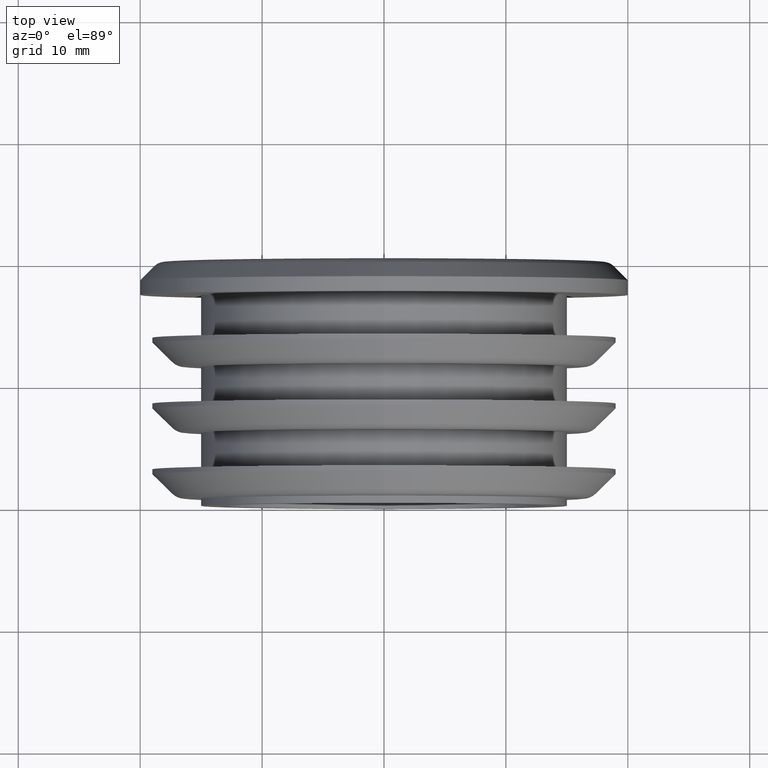
[diagram: clean part render]
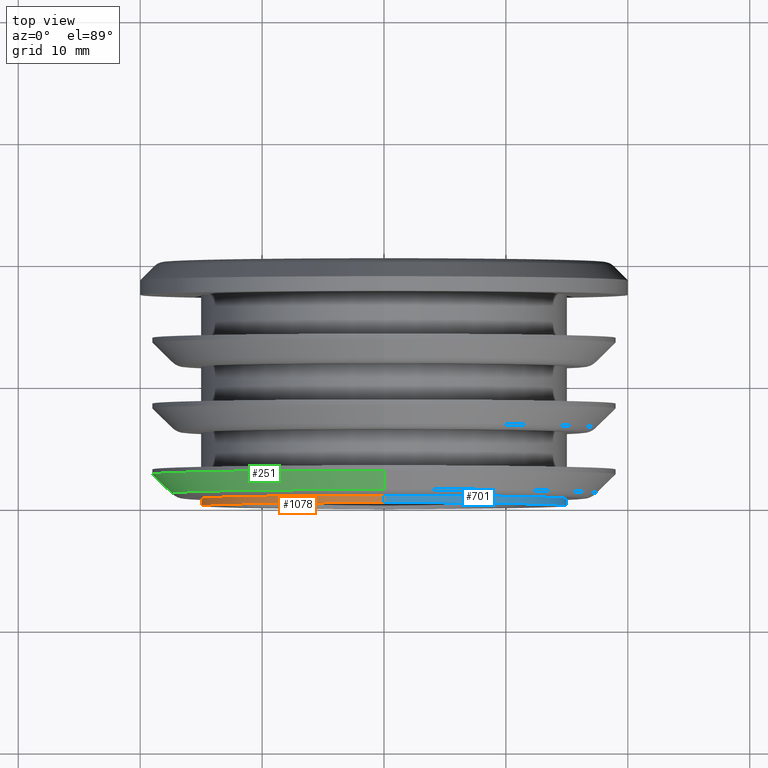
[diagram: same view with three faces highlighted in distinct colors, each labeled with its STEP entity id]
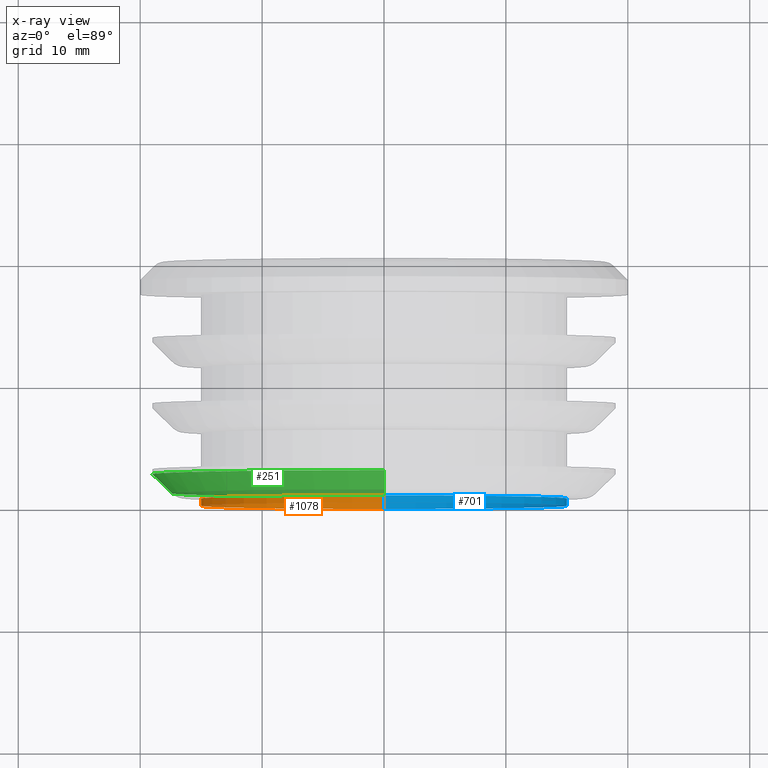
[diagram: x-ray of the same camera — body ghosted, the three highlighted faces saturated]
A machine part, top view with three faces highlighted in distinct colors.
The next image is the same camera in x-ray (body ghosted, the three faces saturated) — at least one of them is partly hidden behind the body in this view.
Their STEP definitions:

[orange] entity #1078 — the highlighted cylindrical surface (partial cylindrical patch) has radius 15 mm, axis along (-0, -1, -0).
#2 = CARTESIAN_POINT ( 'NONE',  ( 0.000000000000000000, 0.6000000000000033085, 0.000000000000000000 ) ) ;
#32 = DIRECTION ( 'NONE',  ( -0.000000000000000000, -1.000000000000000000, -0.000000000000000000 ) ) ;
#36 = CARTESIAN_POINT ( 'NONE',  ( 0.000000000000000000, 0.000000000000000000, 0.000000000000000000 ) ) ;
#78 = CIRCLE ( 'NONE', #214, 15.00000000000000178 ) ;
#104 = VERTEX_POINT ( 'NONE', #1122 ) ;
#158 = DIRECTION ( 'NONE',  ( 0.000000000000000000, 0.000000000000000000, -1.000000000000000000 ) ) ;
#160 = VERTEX_POINT ( 'NONE', #860 ) ;
#214 = AXIS2_PLACEMENT_3D ( 'NONE', #2, #732, #276 ) ;
#276 = DIRECTION ( 'NONE',  ( 0.000000000000000000, 0.000000000000000000, -1.000000000000000000 ) ) ;
#296 = ORIENTED_EDGE ( 'NONE', *, *, #836, .F. ) ;
#321 = EDGE_LOOP ( 'NONE', ( #539, #640, #390, #296 ) ) ;
#328 = AXIS2_PLACEMENT_3D ( 'NONE', #36, #32, #858 ) ;
#390 = ORIENTED_EDGE ( 'NONE', *, *, #497, .T. ) ;
#407 = AXIS2_PLACEMENT_3D ( 'NONE', #697, #955, #158 ) ;
#428 = CARTESIAN_POINT ( 'NONE',  ( 0.000000000000000000, 0.000000000000000000, -15.00000000000000178 ) ) ;
#433 = VERTEX_POINT ( 'NONE', #428 ) ;
#469 = VECTOR ( 'NONE', #893, 1000.000000000000000 ) ;
#480 = EDGE_CURVE ( 'NONE', #896, #160, #975, .T. ) ;
#496 = FACE_OUTER_BOUND ( 'NONE', #321, .T. ) ;
#497 = EDGE_CURVE ( 'NONE', #104, #433, #982, .T. ) ;
#539 = ORIENTED_EDGE ( 'NONE', *, *, #480, .F. ) ;
#546 = EDGE_CURVE ( 'NONE', #896, #104, #78, .T. ) ;
#583 = VECTOR ( 'NONE', #721, 1000.000000000000000 ) ;
#640 = ORIENTED_EDGE ( 'NONE', *, *, #546, .T. ) ;
#650 = CARTESIAN_POINT ( 'NONE',  ( 1.836970198721029983E-15, 0.000000000000000000, 15.00000000000000178 ) ) ;
#655 = CARTESIAN_POINT ( 'NONE',  ( 0.000000000000000000, 0.000000000000000000, -15.00000000000000178 ) ) ;
#697 = CARTESIAN_POINT ( 'NONE',  ( 0.000000000000000000, 0.000000000000000000, 0.000000000000000000 ) ) ;
#721 = DIRECTION ( 'NONE',  ( -0.000000000000000000, -1.000000000000000000, -0.000000000000000000 ) ) ;
#732 = DIRECTION ( 'NONE',  ( -0.000000000000000000, -1.000000000000000000, -0.000000000000000000 ) ) ;
#809 = CARTESIAN_POINT ( 'NONE',  ( 1.836970198721029983E-15, 0.6000000000000033085, 15.00000000000000178 ) ) ;
#836 = EDGE_CURVE ( 'NONE', #160, #433, #1072, .T. ) ;
#842 = CYLINDRICAL_SURFACE ( 'NONE', #328, 15.00000000000000178 ) ;
#858 = DIRECTION ( 'NONE',  ( 0.000000000000000000, 0.000000000000000000, -1.000000000000000000 ) ) ;
#860 = CARTESIAN_POINT ( 'NONE',  ( 1.836970198721029983E-15, 0.000000000000000000, 15.00000000000000178 ) ) ;
#893 = DIRECTION ( 'NONE',  ( -0.000000000000000000, -1.000000000000000000, -0.000000000000000000 ) ) ;
#896 = VERTEX_POINT ( 'NONE', #809 ) ;
#955 = DIRECTION ( 'NONE',  ( -0.000000000000000000, -1.000000000000000000, -0.000000000000000000 ) ) ;
#975 = LINE ( 'NONE', #650, #583 ) ;
#982 = LINE ( 'NONE', #655, #469 ) ;
#1072 = CIRCLE ( 'NONE', #407, 15.00000000000000178 ) ;
#1078 = ADVANCED_FACE ( 'NONE', ( #496 ), #842, .T. ) ;
#1122 = CARTESIAN_POINT ( 'NONE',  ( 0.000000000000000000, 0.6000000000000033085, -15.00000000000000178 ) ) ;

[blue] entity #701 — the highlighted cylindrical surface (partial cylindrical patch) has radius 15 mm, axis along (-0, -1, -0).
#104 = VERTEX_POINT ( 'NONE', #1122 ) ;
#141 = ORIENTED_EDGE ( 'NONE', *, *, #497, .F. ) ;
#146 = CYLINDRICAL_SURFACE ( 'NONE', #865, 15.00000000000000178 ) ;
#160 = VERTEX_POINT ( 'NONE', #860 ) ;
#255 = CARTESIAN_POINT ( 'NONE',  ( 0.000000000000000000, 0.000000000000000000, 0.000000000000000000 ) ) ;
#267 = DIRECTION ( 'NONE',  ( -0.000000000000000000, -1.000000000000000000, -0.000000000000000000 ) ) ;
#301 = AXIS2_PLACEMENT_3D ( 'NONE', #329, #1124, #1116 ) ;
#313 = EDGE_LOOP ( 'NONE', ( #479, #619, #715, #141 ) ) ;
#329 = CARTESIAN_POINT ( 'NONE',  ( 0.000000000000000000, 0.6000000000000033085, 0.000000000000000000 ) ) ;
#349 = CIRCLE ( 'NONE', #518, 15.00000000000000178 ) ;
#428 = CARTESIAN_POINT ( 'NONE',  ( 0.000000000000000000, 0.000000000000000000, -15.00000000000000178 ) ) ;
#433 = VERTEX_POINT ( 'NONE', #428 ) ;
#441 = FACE_OUTER_BOUND ( 'NONE', #313, .T. ) ;
#469 = VECTOR ( 'NONE', #893, 1000.000000000000000 ) ;
#479 = ORIENTED_EDGE ( 'NONE', *, *, #1102, .T. ) ;
#480 = EDGE_CURVE ( 'NONE', #896, #160, #975, .T. ) ;
#497 = EDGE_CURVE ( 'NONE', #104, #433, #982, .T. ) ;
#518 = AXIS2_PLACEMENT_3D ( 'NONE', #255, #708, #1053 ) ;
#583 = VECTOR ( 'NONE', #721, 1000.000000000000000 ) ;
#619 = ORIENTED_EDGE ( 'NONE', *, *, #480, .T. ) ;
#650 = CARTESIAN_POINT ( 'NONE',  ( 1.836970198721029983E-15, 0.000000000000000000, 15.00000000000000178 ) ) ;
#655 = CARTESIAN_POINT ( 'NONE',  ( 0.000000000000000000, 0.000000000000000000, -15.00000000000000178 ) ) ;
#701 = ADVANCED_FACE ( 'NONE', ( #441 ), #146, .T. ) ;
#708 = DIRECTION ( 'NONE',  ( -0.000000000000000000, -1.000000000000000000, -0.000000000000000000 ) ) ;
#715 = ORIENTED_EDGE ( 'NONE', *, *, #774, .F. ) ;
#721 = DIRECTION ( 'NONE',  ( -0.000000000000000000, -1.000000000000000000, -0.000000000000000000 ) ) ;
#774 = EDGE_CURVE ( 'NONE', #433, #160, #349, .T. ) ;
#794 = CIRCLE ( 'NONE', #301, 15.00000000000000178 ) ;
#809 = CARTESIAN_POINT ( 'NONE',  ( 1.836970198721029983E-15, 0.6000000000000033085, 15.00000000000000178 ) ) ;
#860 = CARTESIAN_POINT ( 'NONE',  ( 1.836970198721029983E-15, 0.000000000000000000, 15.00000000000000178 ) ) ;
#865 = AXIS2_PLACEMENT_3D ( 'NONE', #1059, #267, #867 ) ;
#867 = DIRECTION ( 'NONE',  ( 0.000000000000000000, 0.000000000000000000, -1.000000000000000000 ) ) ;
#893 = DIRECTION ( 'NONE',  ( -0.000000000000000000, -1.000000000000000000, -0.000000000000000000 ) ) ;
#896 = VERTEX_POINT ( 'NONE', #809 ) ;
#975 = LINE ( 'NONE', #650, #583 ) ;
#982 = LINE ( 'NONE', #655, #469 ) ;
#1053 = DIRECTION ( 'NONE',  ( 0.000000000000000000, 0.000000000000000000, -1.000000000000000000 ) ) ;
#1059 = CARTESIAN_POINT ( 'NONE',  ( 0.000000000000000000, 0.000000000000000000, 0.000000000000000000 ) ) ;
#1102 = EDGE_CURVE ( 'NONE', #104, #896, #794, .T. ) ;
#1116 = DIRECTION ( 'NONE',  ( 0.000000000000000000, 0.000000000000000000, -1.000000000000000000 ) ) ;
#1122 = CARTESIAN_POINT ( 'NONE',  ( 0.000000000000000000, 0.6000000000000033085, -15.00000000000000178 ) ) ;
#1124 = DIRECTION ( 'NONE',  ( -0.000000000000000000, -1.000000000000000000, -0.000000000000000000 ) ) ;

[green] entity #251 — the highlighted conical surface has half-angle 45 deg.
#16 = DIRECTION ( 'NONE',  ( 0.000000000000000000, 1.000000000000000000, 0.000000000000000000 ) ) ;
#142 = DIRECTION ( 'NONE',  ( 8.659560562354937789E-17, 0.7071067811865472397, -0.7071067811865479058 ) ) ;
#159 = LINE ( 'NONE', #348, #934 ) ;
#172 = CARTESIAN_POINT ( 'NONE',  ( 0.000000000000000000, 0.6000000000000033085, 17.00000000000000000 ) ) ;
#188 = DIRECTION ( 'NONE',  ( -0.000000000000000000, -1.000000000000000000, -0.000000000000000000 ) ) ;
#199 = AXIS2_PLACEMENT_3D ( 'NONE', #727, #16, #299 ) ;
#200 = CARTESIAN_POINT ( 'NONE',  ( 0.000000000000000000, 1.039339828220180229, 17.43933982822017725 ) ) ;
#228 = EDGE_CURVE ( 'NONE', #1119, #831, #1048, .T. ) ;
#232 = AXIS2_PLACEMENT_3D ( 'NONE', #1017, #679, #504 ) ;
#251 = ADVANCED_FACE ( 'NONE', ( #1118 ), #808, .T. ) ;
#261 = CARTESIAN_POINT ( 'NONE',  ( 0.000000000000000000, 2.600000000000003197, -19.00000000000000355 ) ) ;
#299 = DIRECTION ( 'NONE',  ( 0.000000000000000000, 0.000000000000000000, -1.000000000000000000 ) ) ;
#306 = EDGE_CURVE ( 'NONE', #699, #831, #159, .T. ) ;
#330 = CARTESIAN_POINT ( 'NONE',  ( 2.231266044183625193E-15, 1.039339828220180229, -17.43933982822017725 ) ) ;
#348 = CARTESIAN_POINT ( 'NONE',  ( 2.081899558550500280E-15, 0.6000000000000033085, -17.00000000000000000 ) ) ;
#417 = CARTESIAN_POINT ( 'NONE',  ( 2.326828918379971365E-15, 2.600000000000003197, 19.00000000000000355 ) ) ;
#447 = ORIENTED_EDGE ( 'NONE', *, *, #306, .F. ) ;
#473 = CARTESIAN_POINT ( 'NONE',  ( 0.000000000000000000, 2.600000000000003197, 0.000000000000000000 ) ) ;
#504 = DIRECTION ( 'NONE',  ( 0.000000000000000000, 0.000000000000000000, 1.000000000000000000 ) ) ;
#620 = ORIENTED_EDGE ( 'NONE', *, *, #228, .T. ) ;
#631 = ORIENTED_EDGE ( 'NONE', *, *, #795, .T. ) ;
#634 = AXIS2_PLACEMENT_3D ( 'NONE', #473, #188, #728 ) ;
#667 = ORIENTED_EDGE ( 'NONE', *, *, #846, .T. ) ;
#679 = DIRECTION ( 'NONE',  ( 0.000000000000000000, 1.000000000000000000, 0.000000000000000000 ) ) ;
#699 = VERTEX_POINT ( 'NONE', #330 ) ;
#707 = CIRCLE ( 'NONE', #199, 17.43933982822017725 ) ;
#722 = LINE ( 'NONE', #172, #1106 ) ;
#727 = CARTESIAN_POINT ( 'NONE',  ( 0.000000000000000000, 1.039339828220180229, 0.000000000000000000 ) ) ;
#728 = DIRECTION ( 'NONE',  ( 0.000000000000000000, 0.000000000000000000, -1.000000000000000000 ) ) ;
#792 = DIRECTION ( 'NONE',  ( 0.000000000000000000, 0.7071067811865472397, 0.7071067811865479058 ) ) ;
#795 = EDGE_CURVE ( 'NONE', #895, #1119, #722, .T. ) ;
#808 = CONICAL_SURFACE ( 'NONE', #232, 17.00000000000000000, 0.7853981633974487231 ) ;
#831 = VERTEX_POINT ( 'NONE', #261 ) ;
#846 = EDGE_CURVE ( 'NONE', #699, #895, #707, .T. ) ;
#895 = VERTEX_POINT ( 'NONE', #200 ) ;
#933 = EDGE_LOOP ( 'NONE', ( #447, #667, #631, #620 ) ) ;
#934 = VECTOR ( 'NONE', #142, 999.9999999999998863 ) ;
#1017 = CARTESIAN_POINT ( 'NONE',  ( 0.000000000000000000, 0.6000000000000033085, 0.000000000000000000 ) ) ;
#1048 = CIRCLE ( 'NONE', #634, 19.00000000000000355 ) ;
#1106 = VECTOR ( 'NONE', #792, 999.9999999999998863 ) ;
#1118 = FACE_OUTER_BOUND ( 'NONE', #933, .T. ) ;
#1119 = VERTEX_POINT ( 'NONE', #417 ) ;